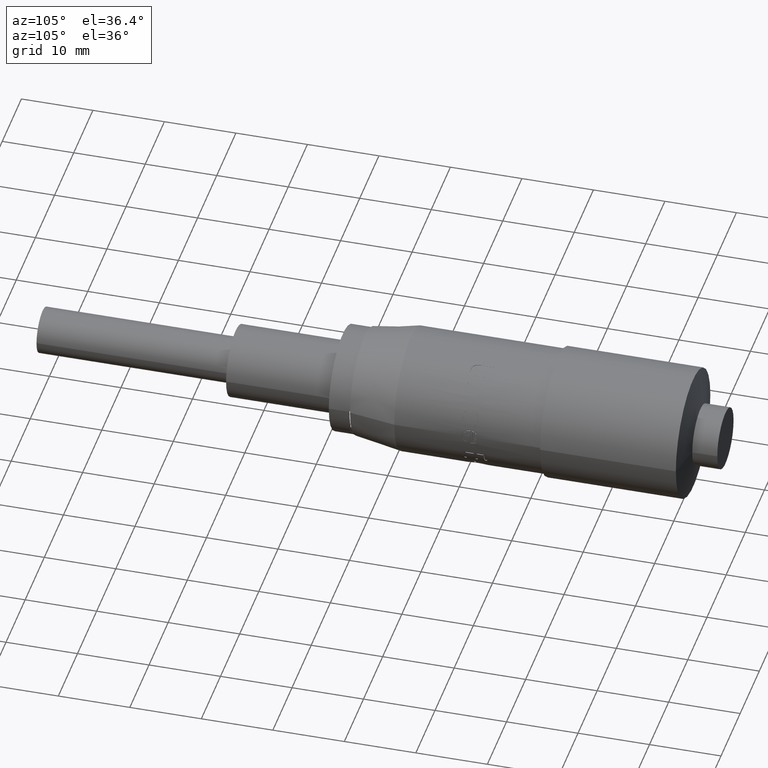
[diagram: clean part render]
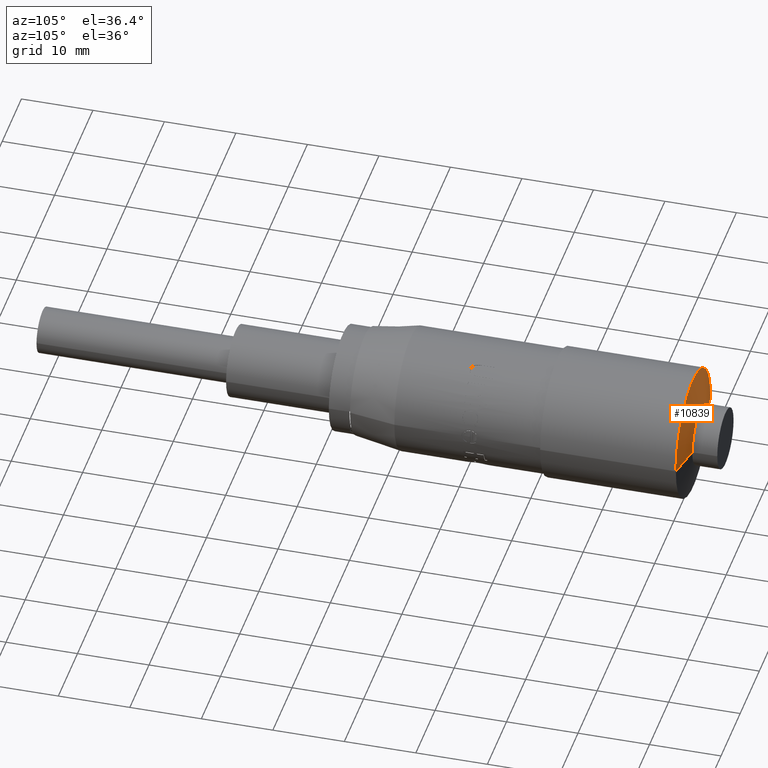
[diagram: same view with one face highlighted and labeled with its STEP entity id]
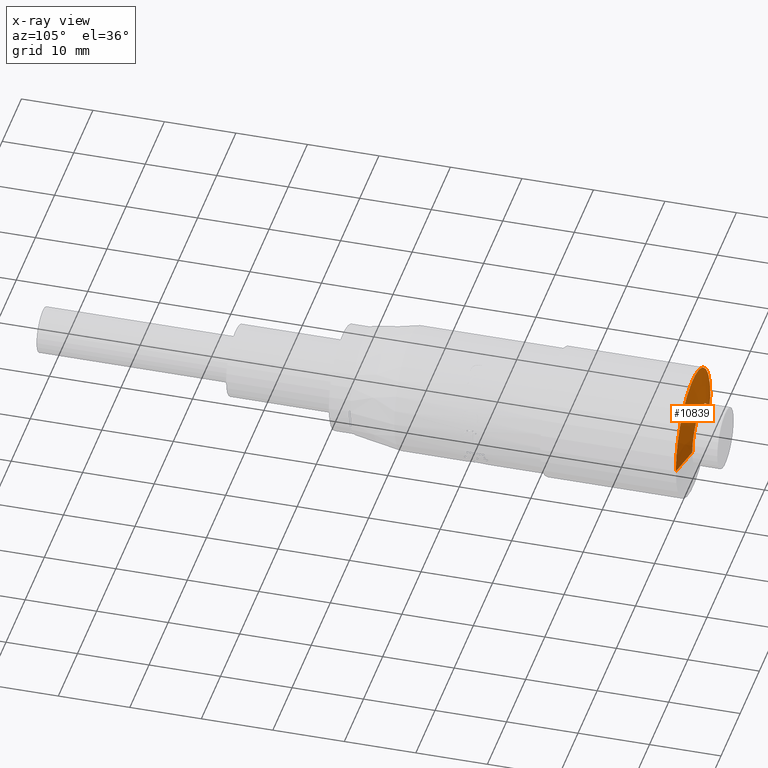
[diagram: x-ray of the same camera — body ghosted, the highlighted face saturated]
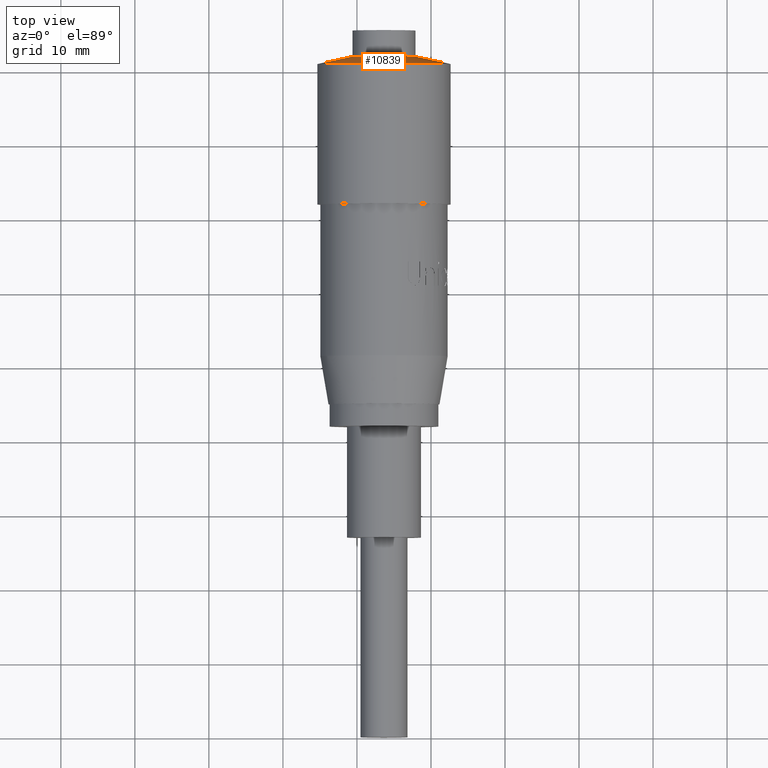
[diagram: same view with one face highlighted and labeled with its STEP entity id]
A machine part, auxiliary view. The second image highlights one B-rep face of the part: STEP entity #10839.
The next image is the same camera in x-ray: the body ghosted, the highlighted face saturated — about 0% of this face is hidden behind the body in this view.
A second angle (top view) of the same face is appended — the face is thin or edge-on in the first view.
In plain terms, the highlighted conical surface has half-angle 77.863 deg.
Its self-contained STEP definition (entity closure, byte-faithful):
#56 = VECTOR ( 'NONE', #834, 1000.000000000000000 ) ;
#329 = ORIENTED_EDGE ( 'NONE', *, *, #5022, .T. ) ;
#834 = DIRECTION ( 'NONE',  ( 0.9776483112944344100, -0.2102469486654697500, 0.0000000000000000000 ) ) ;
#942 = VERTEX_POINT ( 'NONE', #11306 ) ;
#1023 = CIRCLE ( 'NONE', #6848, 4.250000000000000000 ) ;
#1383 = CARTESIAN_POINT ( 'NONE',  ( 33.65296289245996100, 62.02618278390013300, 28.87709965591408000 ) ) ;
#1424 = DIRECTION ( 'NONE',  ( -1.058937486943297600E-016, 1.000000000000000000, -0.0000000000000000000 ) ) ;
#1445 = EDGE_LOOP ( 'NONE', ( #1964, #4799, #329, #8308 ) ) ;
#1564 = CARTESIAN_POINT ( 'NONE',  ( 29.40296289245996100, 62.02618278390013300, 28.87709965591408000 ) ) ;
#1627 = VERTEX_POINT ( 'NONE', #4515 ) ;
#1964 = ORIENTED_EDGE ( 'NONE', *, *, #3852, .F. ) ;
#2207 = CARTESIAN_POINT ( 'NONE',  ( 24.65296289245995700, 61.00467740755604500, 28.87709965591408000 ) ) ;
#2235 = CONICAL_SURFACE ( 'NONE', #10530, 4.250000000000003600, 1.358968779313479000 ) ;
#2254 = DIRECTION ( 'NONE',  ( -1.000000000000000000, 0.0000000000000000000, 0.0000000000000000000 ) ) ;
#2912 = DIRECTION ( 'NONE',  ( 1.000000000000000000, 0.0000000000000000000, 0.0000000000000000000 ) ) ;
#2953 = VECTOR ( 'NONE', #3323, 1000.000000000000100 ) ;
#3323 = DIRECTION ( 'NONE',  ( -0.9776483112944343000, -0.2102469486654699500, 1.197273875118544400E-016 ) ) ;
#3820 = VERTEX_POINT ( 'NONE', #2207 ) ;
#3852 = EDGE_CURVE ( 'NONE', #8567, #942, #1023, .T. ) ;
#4515 = CARTESIAN_POINT ( 'NONE',  ( 42.65296289245996800, 61.00467740755604500, 28.87709965591408000 ) ) ;
#4652 = DIRECTION ( 'NONE',  ( 1.058937486943297600E-016, -1.000000000000000000, 0.0000000000000000000 ) ) ;
#4757 = LINE ( 'NONE', #6143, #56 ) ;
#4799 = ORIENTED_EDGE ( 'NONE', *, *, #9561, .T. ) ;
#4985 = CIRCLE ( 'NONE', #6783, 9.000000000000001800 ) ;
#5022 = EDGE_CURVE ( 'NONE', #3820, #1627, #4985, .T. ) ;
#5555 = EDGE_CURVE ( 'NONE', #942, #1627, #4757, .T. ) ;
#6143 = CARTESIAN_POINT ( 'NONE',  ( 37.90296289245996800, 62.02618278390013300, 28.87709965591408000 ) ) ;
#6719 = CARTESIAN_POINT ( 'NONE',  ( 33.65296289245996100, 61.00467740755604500, 28.87709965591408000 ) ) ;
#6783 = AXIS2_PLACEMENT_3D ( 'NONE', #6719, #1424, #7594 ) ;
#6848 = AXIS2_PLACEMENT_3D ( 'NONE', #1383, #7554, #2254 ) ;
#7554 = DIRECTION ( 'NONE',  ( -1.058937486943297600E-016, 1.000000000000000000, -0.0000000000000000000 ) ) ;
#7594 = DIRECTION ( 'NONE',  ( -1.000000000000000000, 0.0000000000000000000, 0.0000000000000000000 ) ) ;
#8308 = ORIENTED_EDGE ( 'NONE', *, *, #5555, .F. ) ;
#8567 = VERTEX_POINT ( 'NONE', #9897 ) ;
#9561 = EDGE_CURVE ( 'NONE', #8567, #3820, #10027, .T. ) ;
#9897 = CARTESIAN_POINT ( 'NONE',  ( 29.40296289245996100, 62.02618278390013300, 28.87709965591408000 ) ) ;
#10027 = LINE ( 'NONE', #1564, #2953 ) ;
#10149 = FACE_OUTER_BOUND ( 'NONE', #1445, .T. ) ;
#10530 = AXIS2_PLACEMENT_3D ( 'NONE', #10810, #4652, #2912 ) ;
#10810 = CARTESIAN_POINT ( 'NONE',  ( 33.65296289245996100, 62.02618278390013300, 28.87709965591408000 ) ) ;
#10839 = ADVANCED_FACE ( 'NONE', ( #10149 ), #2235, .T. ) ;
#11306 = CARTESIAN_POINT ( 'NONE',  ( 37.90296289245996800, 62.02618278390013300, 28.87709965591408000 ) ) ;